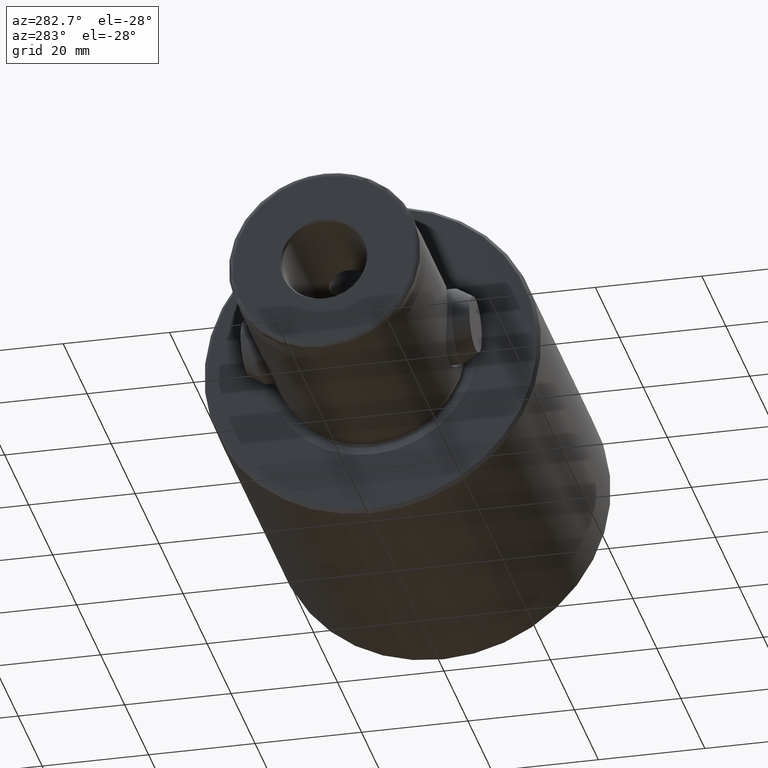
[diagram: clean part render]
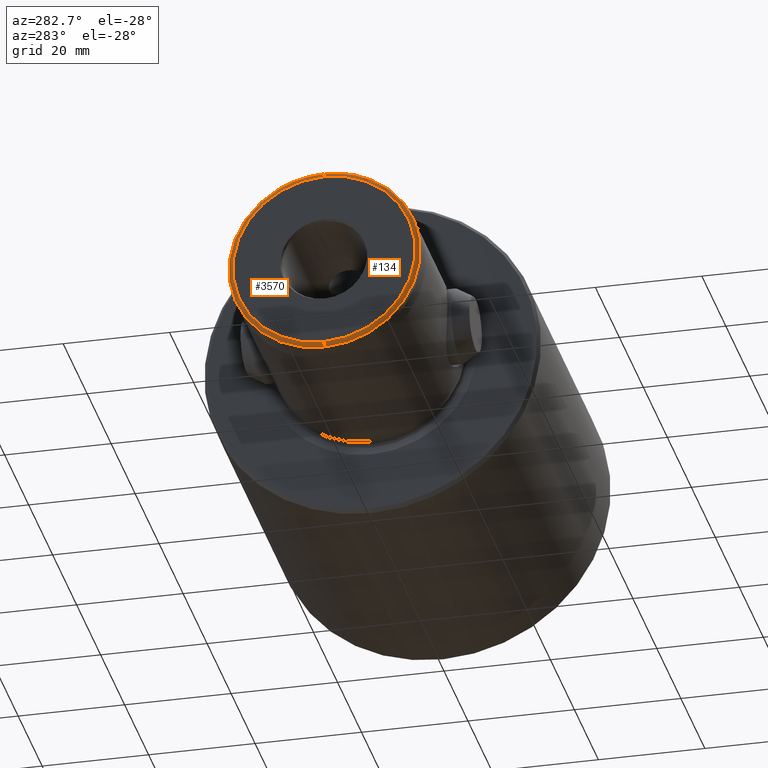
[diagram: same view with one multi-face feature highlighted, each face labeled with its STEP entity id]
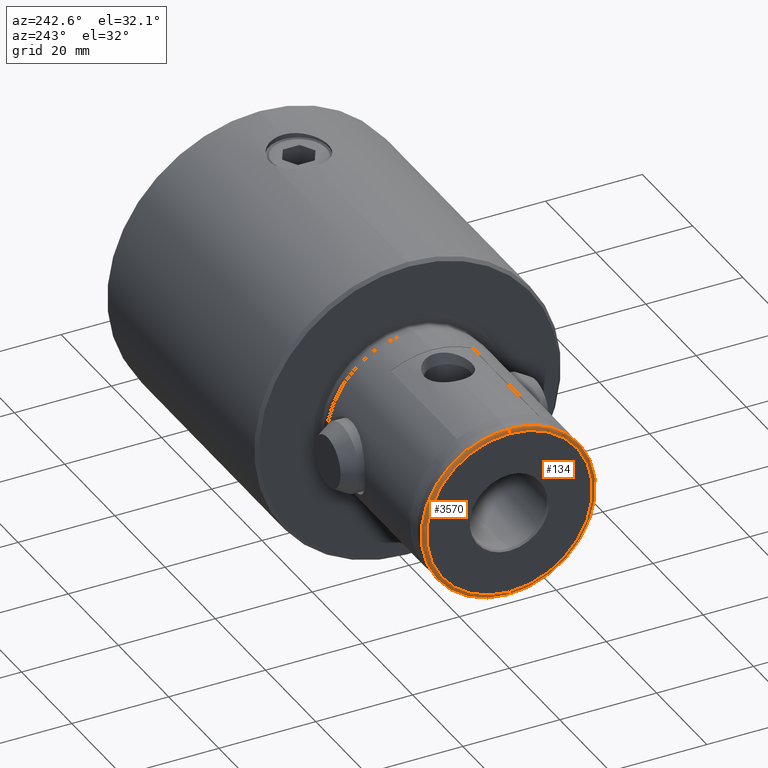
[diagram: same view with one multi-face feature highlighted, each face labeled with its STEP entity id]
A machine part, auxiliary view. The highlighted faces form ONE feature: a constant-radius fillet chain: 2 tangent blend faces with common blend radius 1 mm. The faces share edges in the B-rep.
A second angle (auxiliary view) of the same feature is appended — it is thin or edge-on in the first view.
Their STEP definitions:
[1] entity #3570 (Torus):
#176 = CIRCLE ( 'NONE', #1848, 1.000000000000000900 ) ;
#202 = EDGE_CURVE ( 'NONE', #2425, #4250, #1360, .T. ) ;
#208 = DIRECTION ( 'NONE',  ( 0.0000000000000000000, 0.0000000000000000000, 1.000000000000000000 ) ) ;
#406 = CARTESIAN_POINT ( 'NONE',  ( 17.70314563474696400, 2.942100967229057200, 99.60409695686074400 ) ) ;
#552 = EDGE_CURVE ( 'NONE', #3572, #2200, #176, .T. ) ;
#607 = CIRCLE ( 'NONE', #3169, 17.13397459621555200 ) ;
#729 = CARTESIAN_POINT ( 'NONE',  ( -17.13397459621555200, 0.0000000000000000000, 100.0000000000000000 ) ) ;
#776 = CARTESIAN_POINT ( 'NONE',  ( 17.91855654057319900, 0.7409504958679025100, 99.60520446909757200 ) ) ;
#799 = CARTESIAN_POINT ( 'NONE',  ( -17.13397459621555200, 0.0000000000000000000, 99.00000000000000000 ) ) ;
#876 = CARTESIAN_POINT ( 'NONE',  ( 15.85590443913633500, 8.500000000000003600, 99.51637795922796700 ) ) ;
#992 = EDGE_CURVE ( 'NONE', #4507, #3572, #607, .T. ) ;
#1138 = DIRECTION ( 'NONE',  ( -0.0000000000000000000, -1.000000000000000000, -0.0000000000000000000 ) ) ;
#1146 = CARTESIAN_POINT ( 'NONE',  ( 17.87285224719003900, 1.480279462207407600, 99.60496969315339300 ) ) ;
#1172 = ORIENTED_EDGE ( 'NONE', *, *, #992, .F. ) ;
#1360 = B_SPLINE_CURVE_WITH_KNOTS ( 'NONE', 3,
 ( #2938, #2214, #1880, #2607, #2231, #2590, #406, #2974, #1146, #776, #3334, #1499 ),
 .UNSPECIFIED., .F., .F.,
 ( 4, 2, 2, 2, 2, 4 ),
 ( 2.265413009158513500E-007, 0.002225656742789609700, 0.004451086944278303100, 0.006676517145766998200, 0.007789232246511346200, 0.008901947347255695000 ),
 .UNSPECIFIED. ) ;
#1499 = CARTESIAN_POINT ( 'NONE',  ( 17.93000000000000000, 2.192536887078820200E-015, 99.60526321260242400 ) ) ;
#1599 = CARTESIAN_POINT ( 'NONE',  ( 17.93000000000000000, 2.192536887078820200E-015, 99.60526321260242400 ) ) ;
#1633 = CARTESIAN_POINT ( 'NONE',  ( 15.82123281601947800, 8.500000000000001800, 99.56395675478559300 ) ) ;
#1695 = ORIENTED_EDGE ( 'NONE', *, *, #1757, .F. ) ;
#1705 = CARTESIAN_POINT ( 'NONE',  ( 17.13397459621555200, 2.151335476528989900E-015, 100.0000000000000000 ) ) ;
#1757 = EDGE_CURVE ( 'NONE', #3518, #2425, #2218, .T. ) ;
#1834 = DIRECTION ( 'NONE',  ( 0.0000000000000000000, 0.0000000000000000000, -1.000000000000000000 ) ) ;
#1843 = EDGE_CURVE ( 'NONE', #4507, #4250, #2985, .T. ) ;
#1848 = AXIS2_PLACEMENT_3D ( 'NONE', #799, #1138, #1834 ) ;
#1880 = CARTESIAN_POINT ( 'NONE',  ( 16.45733977195765300, 7.169155794638659700, 99.59763003821690600 ) ) ;
#1901 = ORIENTED_EDGE ( 'NONE', *, *, #552, .F. ) ;
#2042 = CARTESIAN_POINT ( 'NONE',  ( 17.13397459621555200, 2.098306714592744000E-015, 99.00000000000000000 ) ) ;
#2200 = VERTEX_POINT ( 'NONE', #4487 ) ;
#2214 = CARTESIAN_POINT ( 'NONE',  ( 16.14747304696777900, 7.845097509109422200, 99.59600609083938100 ) ) ;
#2215 = DIRECTION ( 'NONE',  ( 0.0000000000000000000, 0.0000000000000000000, -1.000000000000000000 ) ) ;
#2218 = B_SPLINE_CURVE_WITH_KNOTS ( 'NONE', 3,
 ( #3079, #876, #4494, #1633, #4539, #3427 ),
 .UNSPECIFIED., .F., .F.,
 ( 4, 2, 4 ),
 ( 0.006662495635081316600, 0.006720356463322346000, 0.006778217291563376300 ),
 .UNSPECIFIED. ) ;
#2231 = CARTESIAN_POINT ( 'NONE',  ( 17.21262212067879100, 5.084093952750174100, 99.60156339935635100 ) ) ;
#2268 = CARTESIAN_POINT ( 'NONE',  ( 0.0000000000000000000, 0.0000000000000000000, 99.00000000000000000 ) ) ;
#2425 = VERTEX_POINT ( 'NONE', #4519 ) ;
#2479 = DIRECTION ( 'NONE',  ( 1.000000000000000000, 0.0000000000000000000, 0.0000000000000000000 ) ) ;
#2481 = ORIENTED_EDGE ( 'NONE', *, *, #202, .F. ) ;
#2590 = CARTESIAN_POINT ( 'NONE',  ( 17.56871381214125100, 3.662350848832517600, 99.60340483736069900 ) ) ;
#2607 = CARTESIAN_POINT ( 'NONE',  ( 16.99097052349447900, 5.785588953770109700, 99.60041416625762200 ) ) ;
#2938 = CARTESIAN_POINT ( 'NONE',  ( 15.79663165262243000, 8.500000000000001800, 99.59415266510438900 ) ) ;
#2965 = EDGE_LOOP ( 'NONE', ( #1172, #3121, #2481, #1695, #4077, #1901 ) ) ;
#2974 = CARTESIAN_POINT ( 'NONE',  ( 17.83870879444255700, 1.847515975486991000, 99.60479426274339700 ) ) ;
#2985 = CIRCLE ( 'NONE', #3685, 1.000000000000000900 ) ;
#3036 = EDGE_CURVE ( 'NONE', #3518, #2200, #4448, .T. ) ;
#3079 = CARTESIAN_POINT ( 'NONE',  ( 15.86663165262262800, 8.500000000000001800, 99.50000000000031300 ) ) ;
#3121 = ORIENTED_EDGE ( 'NONE', *, *, #1843, .T. ) ;
#3169 = AXIS2_PLACEMENT_3D ( 'NONE', #3477, #208, #3789 ) ;
#3334 = CARTESIAN_POINT ( 'NONE',  ( 17.93000000000000000, 0.3691140406002784700, 99.60526321260242400 ) ) ;
#3336 = CARTESIAN_POINT ( 'NONE',  ( 15.86663165262262800, 8.500000000000001800, 99.50000000000031300 ) ) ;
#3427 = CARTESIAN_POINT ( 'NONE',  ( 15.79663165262243000, 8.500000000000001800, 99.59415266510438900 ) ) ;
#3477 = CARTESIAN_POINT ( 'NONE',  ( 0.0000000000000000000, 0.0000000000000000000, 100.0000000000000000 ) ) ;
#3518 = VERTEX_POINT ( 'NONE', #3336 ) ;
#3544 = TOROIDAL_SURFACE ( 'NONE', #4630, 17.13397459621555200, 1.000000000000000000 ) ;
#3555 = DIRECTION ( 'NONE',  ( -1.224646799147353200E-016, 1.000000000000000000, 0.0000000000000000000 ) ) ;
#3570 = ADVANCED_FACE ( 'NONE', ( #4495 ), #3544, .T. ) ;
#3572 = VERTEX_POINT ( 'NONE', #729 ) ;
#3685 = AXIS2_PLACEMENT_3D ( 'NONE', #2042, #3555, #3912 ) ;
#3750 = AXIS2_PLACEMENT_3D ( 'NONE', #3958, #4679, #2479 ) ;
#3789 = DIRECTION ( 'NONE',  ( 1.000000000000000000, 0.0000000000000000000, 0.0000000000000000000 ) ) ;
#3912 = DIRECTION ( 'NONE',  ( -1.000000000000000000, -1.224646799147353500E-016, 0.0000000000000000000 ) ) ;
#3958 = CARTESIAN_POINT ( 'NONE',  ( 0.0000000000000000000, 0.0000000000000000000, 99.50000000000000000 ) ) ;
#4061 = DIRECTION ( 'NONE',  ( -1.000000000000000000, 0.0000000000000000000, 0.0000000000000000000 ) ) ;
#4077 = ORIENTED_EDGE ( 'NONE', *, *, #3036, .T. ) ;
#4250 = VERTEX_POINT ( 'NONE', #1599 ) ;
#4448 = CIRCLE ( 'NONE', #3750, 18.00000000000000400 ) ;
#4487 = CARTESIAN_POINT ( 'NONE',  ( -18.00000000000000400, 2.204364238465235800E-015, 99.50000000000000000 ) ) ;
#4494 = CARTESIAN_POINT ( 'NONE',  ( 15.84467716490894600, 8.500000000000003600, 99.53244361285884200 ) ) ;
#4495 = FACE_OUTER_BOUND ( 'NONE', #2965, .T. ) ;
#4507 = VERTEX_POINT ( 'NONE', #1705 ) ;
#4519 = CARTESIAN_POINT ( 'NONE',  ( 15.79663165262243000, 8.500000000000001800, 99.59415266510438900 ) ) ;
#4539 = CARTESIAN_POINT ( 'NONE',  ( 15.80912518369258600, 8.500000000000001800, 99.57925850516598100 ) ) ;
#4630 = AXIS2_PLACEMENT_3D ( 'NONE', #2268, #2215, #4061 ) ;
#4679 = DIRECTION ( 'NONE',  ( 0.0000000000000000000, 0.0000000000000000000, 1.000000000000000000 ) ) ;
[2] entity #134 (Torus):
#59 = ORIENTED_EDGE ( 'NONE', *, *, #552, .T. ) ;
#134 = ADVANCED_FACE ( 'NONE', ( #2397 ), #1530, .T. ) ;
#176 = CIRCLE ( 'NONE', #1848, 1.000000000000000900 ) ;
#247 = CIRCLE ( 'NONE', #621, 18.00000000000000400 ) ;
#344 = CARTESIAN_POINT ( 'NONE',  ( 0.0000000000000000000, 0.0000000000000000000, 99.50000000000000000 ) ) ;
#404 = CARTESIAN_POINT ( 'NONE',  ( 16.14764301706905400, -7.844780232287898300, 99.59600698875782100 ) ) ;
#476 = CARTESIAN_POINT ( 'NONE',  ( 17.93000000000000000, 2.192536887078820200E-015, 99.60526321260242400 ) ) ;
#552 = EDGE_CURVE ( 'NONE', #3572, #2200, #176, .T. ) ;
#621 = AXIS2_PLACEMENT_3D ( 'NONE', #344, #3669, #1063 ) ;
#678 = AXIS2_PLACEMENT_3D ( 'NONE', #2664, #1924, #1206 ) ;
#729 = CARTESIAN_POINT ( 'NONE',  ( -17.13397459621555200, 0.0000000000000000000, 100.0000000000000000 ) ) ;
#799 = CARTESIAN_POINT ( 'NONE',  ( -17.13397459621555200, 0.0000000000000000000, 99.00000000000000000 ) ) ;
#806 = CARTESIAN_POINT ( 'NONE',  ( 16.98895386856028700, -5.791336308648099300, 99.60040367507328100 ) ) ;
#973 = ORIENTED_EDGE ( 'NONE', *, *, #1843, .F. ) ;
#1044 = ORIENTED_EDGE ( 'NONE', *, *, #2538, .T. ) ;
#1063 = DIRECTION ( 'NONE',  ( 1.000000000000000000, 0.0000000000000000000, 0.0000000000000000000 ) ) ;
#1130 = CARTESIAN_POINT ( 'NONE',  ( 15.86663165262263100, -8.499999999999998200, 99.50000000000031300 ) ) ;
#1138 = DIRECTION ( 'NONE',  ( -0.0000000000000000000, -1.000000000000000000, -0.0000000000000000000 ) ) ;
#1164 = CARTESIAN_POINT ( 'NONE',  ( 15.79663165260972900, -8.499999999999998200, 99.59415266511946600 ) ) ;
#1175 = CARTESIAN_POINT ( 'NONE',  ( 0.0000000000000000000, 0.0000000000000000000, 99.00000000000000000 ) ) ;
#1206 = DIRECTION ( 'NONE',  ( 1.000000000000000000, 0.0000000000000000000, 0.0000000000000000000 ) ) ;
#1234 = ORIENTED_EDGE ( 'NONE', *, *, #2703, .F. ) ;
#1328 = CIRCLE ( 'NONE', #678, 17.13397459621555200 ) ;
#1514 = CARTESIAN_POINT ( 'NONE',  ( 17.93000000000000000, -1.477172253574520000, 99.60526321260240900 ) ) ;
#1521 = EDGE_CURVE ( 'NONE', #3807, #3067, #4260, .T. ) ;
#1530 = TOROIDAL_SURFACE ( 'NONE', #1618, 17.13397459621555200, 1.000000000000000000 ) ;
#1535 = CARTESIAN_POINT ( 'NONE',  ( 17.75087582784548000, -2.931733099891970600, 99.60434678367818200 ) ) ;
#1599 = CARTESIAN_POINT ( 'NONE',  ( 17.93000000000000000, 2.192536887078820200E-015, 99.60526321260242400 ) ) ;
#1618 = AXIS2_PLACEMENT_3D ( 'NONE', #1175, #3671, #4413 ) ;
#1705 = CARTESIAN_POINT ( 'NONE',  ( 17.13397459621555200, 2.151335476528989900E-015, 100.0000000000000000 ) ) ;
#1812 = CARTESIAN_POINT ( 'NONE',  ( 15.84478446103143600, -8.499999999999998200, 99.53229228639807500 ) ) ;
#1827 = CARTESIAN_POINT ( 'NONE',  ( 15.85596699580325200, -8.499999999999998200, 99.51628244975187000 ) ) ;
#1834 = DIRECTION ( 'NONE',  ( 0.0000000000000000000, 0.0000000000000000000, -1.000000000000000000 ) ) ;
#1843 = EDGE_CURVE ( 'NONE', #4507, #4250, #2985, .T. ) ;
#1848 = AXIS2_PLACEMENT_3D ( 'NONE', #799, #1138, #1834 ) ;
#1917 = CARTESIAN_POINT ( 'NONE',  ( 16.45607730169029600, -7.171907162539857200, 99.59762342093363000 ) ) ;
#1920 = ORIENTED_EDGE ( 'NONE', *, *, #2474, .F. ) ;
#1924 = DIRECTION ( 'NONE',  ( 0.0000000000000000000, 0.0000000000000000000, 1.000000000000000000 ) ) ;
#2042 = CARTESIAN_POINT ( 'NONE',  ( 17.13397459621555200, 2.098306714592744000E-015, 99.00000000000000000 ) ) ;
#2200 = VERTEX_POINT ( 'NONE', #4487 ) ;
#2397 = FACE_OUTER_BOUND ( 'NONE', #4082, .T. ) ;
#2474 = EDGE_CURVE ( 'NONE', #3572, #4507, #1328, .T. ) ;
#2538 = EDGE_CURVE ( 'NONE', #2200, #3067, #247, .T. ) ;
#2606 = CARTESIAN_POINT ( 'NONE',  ( 15.79663165260972900, -8.499999999999998200, 99.59415266511946600 ) ) ;
#2664 = CARTESIAN_POINT ( 'NONE',  ( 0.0000000000000000000, 0.0000000000000000000, 100.0000000000000000 ) ) ;
#2703 = EDGE_CURVE ( 'NONE', #4250, #3807, #4391, .T. ) ;
#2980 = CARTESIAN_POINT ( 'NONE',  ( 15.82138059905786200, -8.499999999999996400, 99.56376513504034200 ) ) ;
#2985 = CIRCLE ( 'NONE', #3685, 1.000000000000000900 ) ;
#3039 = CARTESIAN_POINT ( 'NONE',  ( 17.21412434701657200, -5.079735634557293300, 99.60157119665743200 ) ) ;
#3067 = VERTEX_POINT ( 'NONE', #4691 ) ;
#3555 = DIRECTION ( 'NONE',  ( -1.224646799147353200E-016, 1.000000000000000000, 0.0000000000000000000 ) ) ;
#3572 = VERTEX_POINT ( 'NONE', #729 ) ;
#3669 = DIRECTION ( 'NONE',  ( 0.0000000000000000000, 0.0000000000000000000, 1.000000000000000000 ) ) ;
#3671 = DIRECTION ( 'NONE',  ( 0.0000000000000000000, 0.0000000000000000000, -1.000000000000000000 ) ) ;
#3685 = AXIS2_PLACEMENT_3D ( 'NONE', #2042, #3555, #3912 ) ;
#3807 = VERTEX_POINT ( 'NONE', #4502 ) ;
#3912 = DIRECTION ( 'NONE',  ( -1.000000000000000000, -1.224646799147353500E-016, 0.0000000000000000000 ) ) ;
#4013 = CARTESIAN_POINT ( 'NONE',  ( 15.80917713880976900, -8.499999999999998200, 99.57919656688662300 ) ) ;
#4082 = EDGE_LOOP ( 'NONE', ( #973, #1920, #59, #1044, #4486, #1234 ) ) ;
#4250 = VERTEX_POINT ( 'NONE', #1599 ) ;
#4260 = B_SPLINE_CURVE_WITH_KNOTS ( 'NONE', 3,
 ( #1164, #4013, #2980, #1812, #1827, #1130 ),
 .UNSPECIFIED., .F., .F.,
 ( 4, 2, 4 ),
 ( 0.006691964525527649900, 0.006750091897298654400, 0.006808219269069658800 ),
 .UNSPECIFIED. ) ;
#4391 = B_SPLINE_CURVE_WITH_KNOTS ( 'NONE', 3,
 ( #476, #1514, #1535, #3039, #806, #1917, #404, #2606 ),
 .UNSPECIFIED., .F., .F.,
 ( 4, 2, 2, 4 ),
 ( 0.008901947347255695000, 0.01335496644747710000, 0.01558147599758780100, 0.01780798554769850600 ),
 .UNSPECIFIED. ) ;
#4413 = DIRECTION ( 'NONE',  ( -1.000000000000000000, 0.0000000000000000000, 0.0000000000000000000 ) ) ;
#4486 = ORIENTED_EDGE ( 'NONE', *, *, #1521, .F. ) ;
#4487 = CARTESIAN_POINT ( 'NONE',  ( -18.00000000000000400, 2.204364238465235800E-015, 99.50000000000000000 ) ) ;
#4502 = CARTESIAN_POINT ( 'NONE',  ( 15.79663165260972900, -8.499999999999998200, 99.59415266511946600 ) ) ;
#4507 = VERTEX_POINT ( 'NONE', #1705 ) ;
#4691 = CARTESIAN_POINT ( 'NONE',  ( 15.86663165262263100, -8.499999999999998200, 99.50000000000031300 ) ) ;